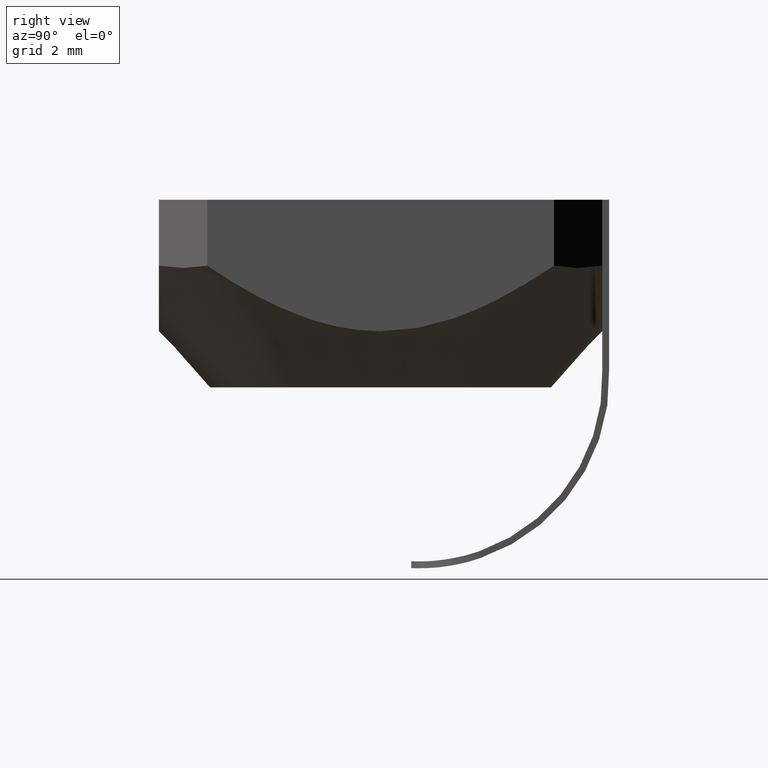
[diagram: clean part render]
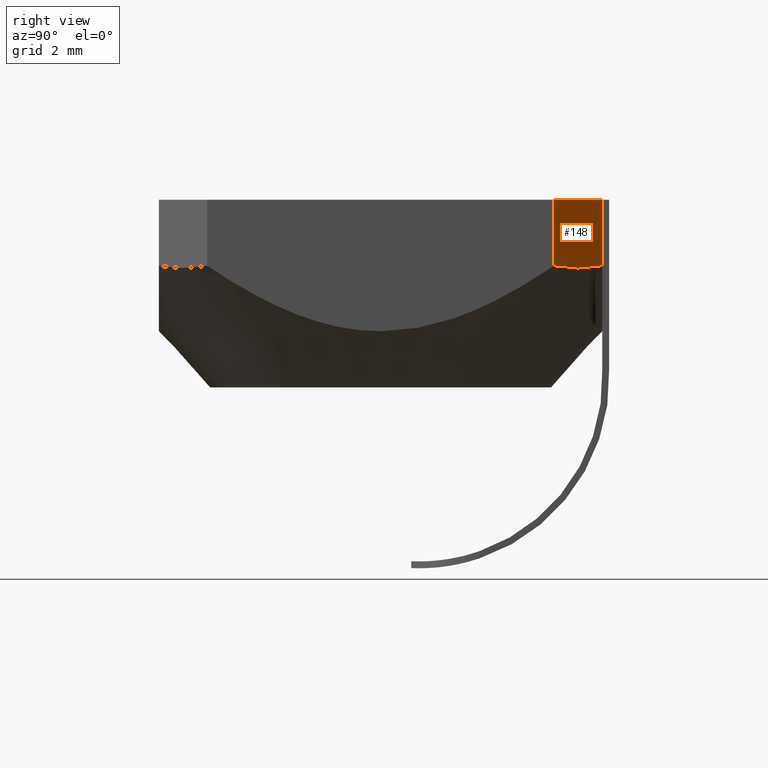
[diagram: same view with one face highlighted and labeled with its STEP entity id]
A machine part, right view. The second image highlights one B-rep face of the part: STEP entity #148.
In plain terms, the highlighted planar face has unit normal (0.7071, 0.7071, 0).
Its self-contained STEP definition (entity closure, byte-faithful):
#6 = DIRECTION ( 'NONE',  ( 0.0000000000000000000, -0.0000000000000000000, 1.000000000000000000 ) ) ;
#23 = ORIENTED_EDGE ( 'NONE', *, *, #899, .F. ) ;
#59 = PLANE ( 'NONE',  #746 ) ;
#73 = DIRECTION ( 'NONE',  ( -0.0000000000000000000, -0.0000000000000000000, 1.000000000000000000 ) ) ;
#89 = CARTESIAN_POINT ( 'NONE',  ( 5.085786390127794654, 6.500000000000004441, -1.933334234377364291 ) ) ;
#113 = CARTESIAN_POINT ( 'NONE',  ( 6.500000000012471801, 5.085786437614437716, -1.933334202284715309 ) ) ;
#148 = ADVANCED_FACE ( 'NONE', ( #659 ), #59, .T. ) ;
#192 = DIRECTION ( 'NONE',  ( -0.7071067811865474617, 0.7071067811865474617, 0.0000000000000000000 ) ) ;
#203 = DIRECTION ( 'NONE',  ( -0.7071067811865474617, 0.7071067811865474617, 0.0000000000000000000 ) ) ;
#210 = CARTESIAN_POINT ( 'NONE',  ( 6.500000000012471801, 5.085786437614437716, -1.933334202284715309 ) ) ;
#254 = CARTESIAN_POINT ( 'NONE',  ( 5.085786390127794654, 6.500000000000004441, -1.933334234377364291 ) ) ;
#269 = LINE ( 'NONE', #933, #754 ) ;
#290 = VERTEX_POINT ( 'NONE', #589 ) ;
#306 = CARTESIAN_POINT ( 'NONE',  ( 5.085786437626906853, 6.500000000000003553, 0.0000000000000000000 ) ) ;
#321 = EDGE_CURVE ( 'NONE', #325, #929, #605, .T. ) ;
#324 = ORIENTED_EDGE ( 'NONE', *, *, #321, .F. ) ;
#325 = VERTEX_POINT ( 'NONE', #210 ) ;
#361 = DIRECTION ( 'NONE',  ( 0.7071067811865475727, 0.7071067811865475727, 0.0000000000000000000 ) ) ;
#366 = VECTOR ( 'NONE', #73, 1000.000000000000000 ) ;
#389 = EDGE_LOOP ( 'NONE', ( #23, #324, #463, #425 ) ) ;
#402 = EDGE_CURVE ( 'NONE', #535, #290, #712, .T. ) ;
#425 = ORIENTED_EDGE ( 'NONE', *, *, #402, .T. ) ;
#456 = CARTESIAN_POINT ( 'NONE',  ( 6.500000000000000888, 5.085786437626907741, 0.0000000000000000000 ) ) ;
#463 = ORIENTED_EDGE ( 'NONE', *, *, #750, .T. ) ;
#530 = VECTOR ( 'NONE', #6, 1000.000000000000000 ) ;
#535 = VERTEX_POINT ( 'NONE', #89 ) ;
#589 = CARTESIAN_POINT ( 'NONE',  ( 5.085786437626906853, 6.500000000000003553, 0.0000000000000000000 ) ) ;
#605 = LINE ( 'NONE', #456, #366 ) ;
#659 = FACE_OUTER_BOUND ( 'NONE', #389, .T. ) ;
#688 = CARTESIAN_POINT ( 'NONE',  ( 6.028595471052790700, 5.557190966534635734, -2.021894488023176617 ) ) ;
#712 = LINE ( 'NONE', #306, #530 ) ;
#714 = CARTESIAN_POINT ( 'NONE',  ( 6.500000000000000888, 5.085786437626908629, 0.0000000000000000000 ) ) ;
#746 = AXIS2_PLACEMENT_3D ( 'NONE', #783, #361, #192 ) ;
#750 = EDGE_CURVE ( 'NONE', #325, #535, #849, .T. ) ;
#754 = VECTOR ( 'NONE', #203, 1000.000000000000114 ) ;
#783 = CARTESIAN_POINT ( 'NONE',  ( 6.500000000000002665, 5.085786437626907741, 0.0000000000000000000 ) ) ;
#837 = CARTESIAN_POINT ( 'NONE',  ( 5.557190925268868043, 6.028595512358042363, -2.021894485313493472 ) ) ;
#849 = B_SPLINE_CURVE_WITH_KNOTS ( 'NONE', 3,
 ( #113, #688, #837, #254 ),
 .UNSPECIFIED., .F., .F.,
 ( 4, 4 ),
 ( 1.619403174964312234E-14, 0.002000000033620774175 ),
 .UNSPECIFIED. ) ;
#899 = EDGE_CURVE ( 'NONE', #929, #290, #269, .T. ) ;
#929 = VERTEX_POINT ( 'NONE', #714 ) ;
#933 = CARTESIAN_POINT ( 'NONE',  ( 6.500000000000002665, 5.085786437626907741, 0.0000000000000000000 ) ) ;